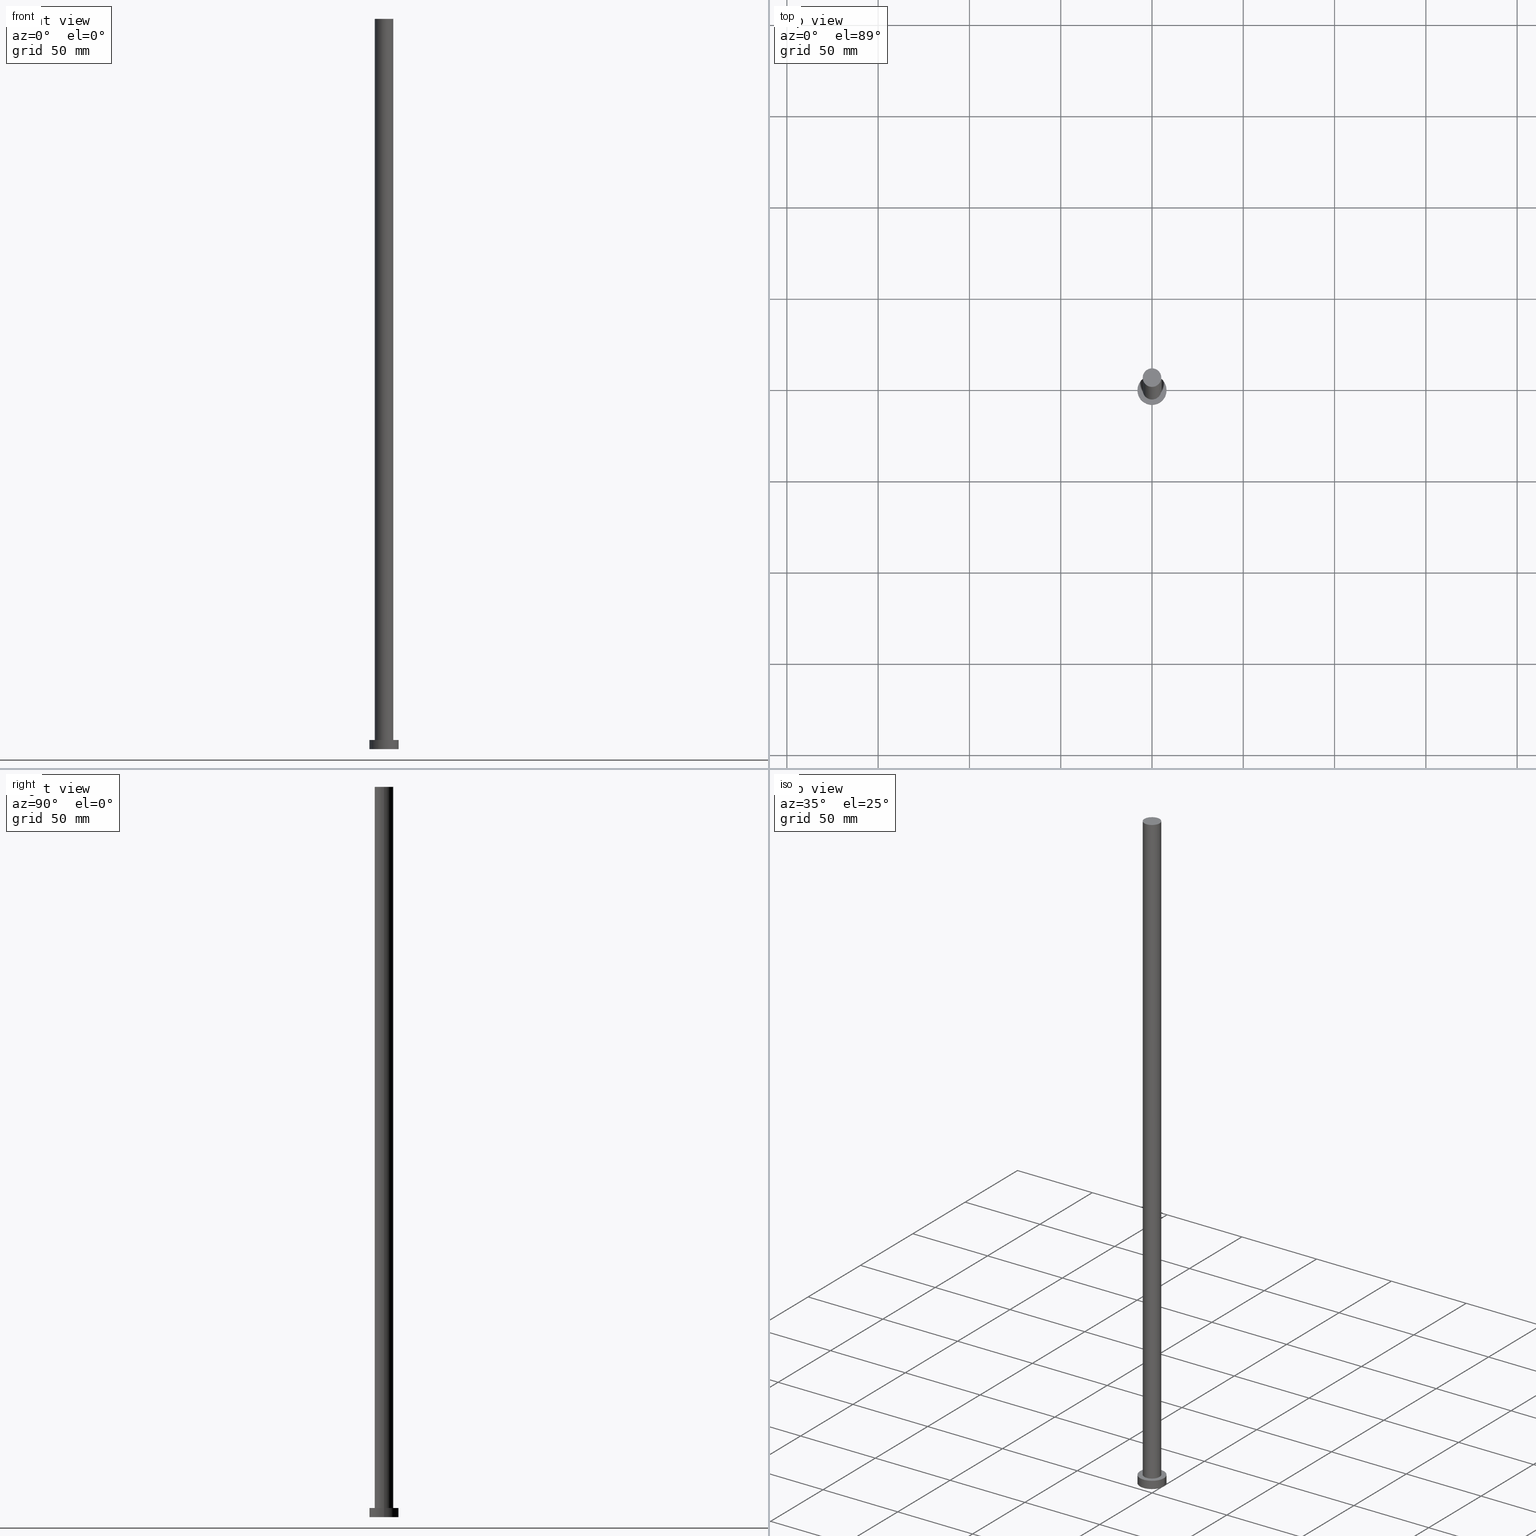
[diagram: canonical four-view strip — front | top / right | iso, engineering-drawing reading convention]
A machine part, canonical four-view strip (front | top / right | iso — engineering-drawing reading convention). The complete STEP part file that produces these views, byte-faithful:
ISO-10303-21;
HEADER;
FILE_DESCRIPTION (( 'STEP AP203' ),
    '1' );
FILE_NAME ('1d76.STEP',
    '2023-02-13T11:13:22',
    ( '' ),
    ( '' ),
    'SwSTEP 2.0',
    'SolidWorks 2019',
    '' );
FILE_SCHEMA (( 'CONFIG_CONTROL_DESIGN' ));
ENDSEC;

DATA;
#1 = FACE_OUTER_BOUND ( 'NONE', #31, .T. ) ;
#2 = MANIFOLD_SOLID_BREP ( 'P�idat vysunut�m3', #82 ) ;
#3 = DIRECTION ( 'NONE',  ( 0.000000000000000000, 0.000000000000000000, 1.000000000000000000 ) ) ;
#4 = UNCERTAINTY_MEASURE_WITH_UNIT (LENGTH_MEASURE( 1.000000000000000082E-05 ), #123, 'distance_accuracy_value', 'NONE');
#5 = EDGE_CURVE ( 'NONE', #151, #147, #227, .T. ) ;
#6 = VECTOR ( 'NONE', #42, 1000.000000000000000 ) ;
#7 = SECURITY_CLASSIFICATION_LEVEL ( 'unclassified' ) ;
#8 = CARTESIAN_POINT ( 'NONE',  ( 5.100000000000001421, 6.245698675651501825E-16, 400.0000000000000000 ) ) ;
#9 = AXIS2_PLACEMENT_3D ( 'NONE', #78, #187, #152 ) ;
#10 = VECTOR ( 'NONE', #232, 1000.000000000000000 ) ;
#11 = ORIENTED_EDGE ( 'NONE', *, *, #186, .F. ) ;
#12 = DIRECTION ( 'NONE',  ( 1.000000000000000000, 0.000000000000000000, 0.000000000000000000 ) ) ;
#13 = APPROVAL_DATE_TIME ( #125, #240 ) ;
#14 = VERTEX_POINT ( 'NONE', #239 ) ;
#15 = APPLICATION_CONTEXT ( 'configuration controlled 3d designs of mechanical parts and assemblies' ) ;
#16 = PERSON_AND_ORGANIZATION_ROLE ( 'classification_officer' ) ;
#17 = EDGE_LOOP ( 'NONE', ( #204, #181 ) ) ;
#18 = LINE ( 'NONE', #53, #52 ) ;
#19 = ADVANCED_FACE ( 'NONE', ( #189 ), #101, .T. ) ;
#20 = PERSON_AND_ORGANIZATION ( #231, #198 ) ;
#21 = DIRECTION ( 'NONE',  ( 1.000000000000000000, 0.000000000000000000, 0.000000000000000000 ) ) ;
#22 = DIRECTION ( 'NONE',  ( 1.000000000000000000, 0.000000000000000000, 0.000000000000000000 ) ) ;
#23 = ORIENTED_EDGE ( 'NONE', *, *, #186, .T. ) ;
#24 = DIRECTION ( 'NONE',  ( -1.000000000000000000, 0.000000000000000000, 0.000000000000000000 ) ) ;
#25 = CC_DESIGN_PERSON_AND_ORGANIZATION_ASSIGNMENT ( #180, #88, ( #166 ) ) ;
#26 = CARTESIAN_POINT ( 'NONE',  ( 0.000000000000000000, 0.000000000000000000, 0.000000000000000000 ) ) ;
#27 = ADVANCED_FACE ( 'NONE', ( #1 ), #96, .T. ) ;
#28 = SECURITY_CLASSIFICATION ( '', '', #7 ) ;
#29 = EDGE_CURVE ( 'NONE', #56, #168, #153, .T. ) ;
#30 = DIRECTION ( 'NONE',  ( -0.000000000000000000, -0.000000000000000000, -1.000000000000000000 ) ) ;
#31 = EDGE_LOOP ( 'NONE', ( #72, #244, #49, #11 ) ) ;
#32 = ORIENTED_EDGE ( 'NONE', *, *, #246, .F. ) ;
#33 = EDGE_CURVE ( 'NONE', #184, #168, #143, .T. ) ;
#34 = EDGE_CURVE ( 'NONE', #147, #97, #18, .T. ) ;
#35 = CARTESIAN_POINT ( 'NONE',  ( -8.000000000000000000, 0.000000000000000000, 5.000000000000000000 ) ) ;
#36 = ORIENTED_EDGE ( 'NONE', *, *, #33, .T. ) ;
#37 = CC_DESIGN_PERSON_AND_ORGANIZATION_ASSIGNMENT ( #194, #16, ( #28 ) ) ;
#38 = FACE_BOUND ( 'NONE', #90, .T. ) ;
#39 = CALENDAR_DATE ( 2023, 13, 2 ) ;
#40 = AXIS2_PLACEMENT_3D ( 'NONE', #137, #230, #145 ) ;
#41 = ORIENTED_EDGE ( 'NONE', *, *, #195, .T. ) ;
#42 = DIRECTION ( 'NONE',  ( -0.000000000000000000, -0.000000000000000000, -1.000000000000000000 ) ) ;
#43 = ORIENTED_EDGE ( 'NONE', *, *, #81, .F. ) ;
#44 = CIRCLE ( 'NONE', #174, 8.000000000000000000 ) ;
#45 = CARTESIAN_POINT ( 'NONE',  ( 0.000000000000000000, 0.000000000000000000, 0.000000000000000000 ) ) ;
#46 = CARTESIAN_POINT ( 'NONE',  ( -8.000000000000000000, 0.000000000000000000, 0.000000000000000000 ) ) ;
#47 = DIRECTION ( 'NONE',  ( 1.000000000000000000, 0.000000000000000000, -0.000000000000000000 ) ) ;
#48 = ORIENTED_EDGE ( 'NONE', *, *, #29, .T. ) ;
#49 = ORIENTED_EDGE ( 'NONE', *, *, #250, .T. ) ;
#50 = DATE_AND_TIME ( #100, #150 ) ;
#51 = DIRECTION ( 'NONE',  ( 1.000000000000000000, 0.000000000000000000, 0.000000000000000000 ) ) ;
#52 = VECTOR ( 'NONE', #93, 1000.000000000000000 ) ;
#53 = CARTESIAN_POINT ( 'NONE',  ( 5.100000000000001421, 6.245698675651501825E-16, 400.0000000000000000 ) ) ;
#54 = APPROVAL_STATUS ( 'not_yet_approved' ) ;
#55 = COORDINATED_UNIVERSAL_TIME_OFFSET ( 1, 0, .AHEAD. ) ;
#56 = VERTEX_POINT ( 'NONE', #209 ) ;
#57 = ADVANCED_FACE ( 'NONE', ( #38, #254 ), #156, .T. ) ;
#58 = DIRECTION ( 'NONE',  ( 0.000000000000000000, 0.000000000000000000, 1.000000000000000000 ) ) ;
#59 = APPROVAL_PERSON_ORGANIZATION ( #98, #160, #76 ) ;
#60 = FACE_OUTER_BOUND ( 'NONE', #255, .T. ) ;
#61 = PERSON_AND_ORGANIZATION ( #231, #198 ) ;
#62 = PLANE ( 'NONE',  #148 ) ;
#63 = CIRCLE ( 'NONE', #213, 8.000000000000000000 ) ;
#64 = CIRCLE ( 'NONE', #120, 5.100000000000001421 ) ;
#65 = APPLICATION_PROTOCOL_DEFINITION ( 'international standard', 'config_control_design', 1994, #162 ) ;
#66 = EDGE_CURVE ( 'NONE', #56, #14, #63, .T. ) ;
#67 = DATE_AND_TIME ( #229, #154 ) ;
#68 = DIRECTION ( 'NONE',  ( 0.000000000000000000, 0.000000000000000000, 1.000000000000000000 ) ) ;
#69 = AXIS2_PLACEMENT_3D ( 'NONE', #220, #108, #47 ) ;
#70 = MECHANICAL_CONTEXT ( 'NONE', #162, 'mechanical' ) ;
#71 = CARTESIAN_POINT ( 'NONE',  ( 0.000000000000000000, 0.000000000000000000, 5.000000000000000000 ) ) ;
#72 = ORIENTED_EDGE ( 'NONE', *, *, #115, .F. ) ;
#73 = DATE_AND_TIME ( #131, #118 ) ;
#74 = DIRECTION ( 'NONE',  ( 0.000000000000000000, 0.000000000000000000, 1.000000000000000000 ) ) ;
#75 = COORDINATED_UNIVERSAL_TIME_OFFSET ( 1, 0, .AHEAD. ) ;
#76 = APPROVAL_ROLE ( '' ) ;
#77 = CARTESIAN_POINT ( 'NONE',  ( 0.000000000000000000, 0.000000000000000000, 400.0000000000000000 ) ) ;
#78 = CARTESIAN_POINT ( 'NONE',  ( 0.000000000000000000, 0.000000000000000000, 400.0000000000000000 ) ) ;
#79 = CIRCLE ( 'NONE', #222, 5.100000000000001421 ) ;
#80 = ADVANCED_FACE ( 'NONE', ( #60 ), #62, .F. ) ;
#81 = EDGE_CURVE ( 'NONE', #133, #97, #79, .T. ) ;
#82 = CLOSED_SHELL ( 'NONE', ( #27, #214, #124, #57, #80, #192, #19 ) ) ;
#83 = CARTESIAN_POINT ( 'NONE',  ( 0.000000000000000000, 0.000000000000000000, 5.000000000000000000 ) ) ;
#84 = AXIS2_PLACEMENT_3D ( 'NONE', #83, #218, #24 ) ;
#85 = AXIS2_PLACEMENT_3D ( 'NONE', #126, #178, #226 ) ;
#86 = ORIENTED_EDGE ( 'NONE', *, *, #237, .F. ) ;
#87 = CC_DESIGN_PERSON_AND_ORGANIZATION_ASSIGNMENT ( #216, #132, ( #253 ) ) ;
#88 = PERSON_AND_ORGANIZATION_ROLE ( 'design_owner' ) ;
#89 =( GEOMETRIC_REPRESENTATION_CONTEXT ( 3 ) GLOBAL_UNCERTAINTY_ASSIGNED_CONTEXT ( ( #4 ) ) GLOBAL_UNIT_ASSIGNED_CONTEXT ( ( #123, #144, #243 ) ) REPRESENTATION_CONTEXT ( 'NONE', 'WORKASPACE' ) );
#90 = EDGE_LOOP ( 'NONE', ( #43, #146 ) ) ;
#91 = CC_DESIGN_DATE_AND_TIME_ASSIGNMENT ( #164, #251, ( #175 ) ) ;
#92 = APPROVAL_DATE_TIME ( #50, #106 ) ;
#93 = DIRECTION ( 'NONE',  ( -0.000000000000000000, -0.000000000000000000, -1.000000000000000000 ) ) ;
#94 = ADVANCED_BREP_SHAPE_REPRESENTATION ( '1d76', ( #2, #85 ), #89 ) ;
#95 = APPLICATION_PROTOCOL_DEFINITION ( 'international standard', 'config_control_design', 1994, #15 ) ;
#96 = CYLINDRICAL_SURFACE ( 'NONE', #9, 5.100000000000001421 ) ;
#97 = VERTEX_POINT ( 'NONE', #221 ) ;
#98 = PERSON_AND_ORGANIZATION ( #231, #198 ) ;
#99 = PRODUCT_DEFINITION_SHAPE ( 'NONE', 'NONE',  #175 ) ;
#100 = CALENDAR_DATE ( 2023, 13, 2 ) ;
#101 = PLANE ( 'NONE',  #117 ) ;
#102 = CARTESIAN_POINT ( 'NONE',  ( 0.000000000000000000, 0.000000000000000000, 400.0000000000000000 ) ) ;
#103 = ORIENTED_EDGE ( 'NONE', *, *, #66, .F. ) ;
#104 = APPROVAL_PERSON_ORGANIZATION ( #149, #106, #236 ) ;
#105 = DIRECTION ( 'NONE',  ( 0.000000000000000000, 0.000000000000000000, 1.000000000000000000 ) ) ;
#106 = APPROVAL ( #116, 'NEUR�EN�' ) ;
#107 = CARTESIAN_POINT ( 'NONE',  ( 8.000000000000000000, 9.797174393178825657E-16, 0.000000000000000000 ) ) ;
#108 = DIRECTION ( 'NONE',  ( 0.000000000000000000, 0.000000000000000000, 1.000000000000000000 ) ) ;
#109 = CARTESIAN_POINT ( 'NONE',  ( 0.000000000000000000, 0.000000000000000000, 5.000000000000000000 ) ) ;
#110 = DIRECTION ( 'NONE',  ( 1.000000000000000000, 0.000000000000000000, 0.000000000000000000 ) ) ;
#111 = LOCAL_TIME ( 12, 13, 22.00000000000000000, #75 ) ;
#112 = COORDINATED_UNIVERSAL_TIME_OFFSET ( 1, 0, .AHEAD. ) ;
#113 = CIRCLE ( 'NONE', #205, 5.100000000000001421 ) ;
#114 = ORIENTED_EDGE ( 'NONE', *, *, #5, .F. ) ;
#115 = EDGE_CURVE ( 'NONE', #147, #151, #113, .T. ) ;
#116 = APPROVAL_STATUS ( 'not_yet_approved' ) ;
#117 = AXIS2_PLACEMENT_3D ( 'NONE', #77, #185, #234 ) ;
#118 = LOCAL_TIME ( 12, 13, 22.00000000000000000, #55 ) ;
#119 = DIRECTION ( 'NONE',  ( 1.000000000000000000, 0.000000000000000000, 0.000000000000000000 ) ) ;
#120 = AXIS2_PLACEMENT_3D ( 'NONE', #71, #161, #110 ) ;
#121 = DIRECTION ( 'NONE',  ( -0.000000000000000000, -0.000000000000000000, -1.000000000000000000 ) ) ;
#122 = SHAPE_DEFINITION_REPRESENTATION ( #99, #94 ) ;
#123 =( LENGTH_UNIT ( ) NAMED_UNIT ( * ) SI_UNIT ( .MILLI., .METRE. ) );
#124 = ADVANCED_FACE ( 'NONE', ( #155 ), #134, .T. ) ;
#125 = DATE_AND_TIME ( #179, #130 ) ;
#126 = CARTESIAN_POINT ( 'NONE',  ( 0.000000000000000000, 0.000000000000000000, 0.000000000000000000 ) ) ;
#127 = DATE_TIME_ROLE ( 'classification_date' ) ;
#128 = CARTESIAN_POINT ( 'NONE',  ( 0.000000000000000000, 0.000000000000000000, 5.000000000000000000 ) ) ;
#129 = ORIENTED_EDGE ( 'NONE', *, *, #66, .T. ) ;
#130 = LOCAL_TIME ( 12, 13, 22.00000000000000000, #112 ) ;
#131 = CALENDAR_DATE ( 2023, 13, 2 ) ;
#132 = PERSON_AND_ORGANIZATION_ROLE ( 'design_supplier' ) ;
#133 = VERTEX_POINT ( 'NONE', #193 ) ;
#134 = CYLINDRICAL_SURFACE ( 'NONE', #84, 8.000000000000000000 ) ;
#135 = APPROVAL_PERSON_ORGANIZATION ( #61, #240, #158 ) ;
#136 = DIRECTION ( 'NONE',  ( 1.000000000000000000, 0.000000000000000000, -0.000000000000000000 ) ) ;
#137 = CARTESIAN_POINT ( 'NONE',  ( 0.000000000000000000, 0.000000000000000000, 400.0000000000000000 ) ) ;
#138 = COORDINATED_UNIVERSAL_TIME_OFFSET ( 1, 0, .AHEAD. ) ;
#139 = CARTESIAN_POINT ( 'NONE',  ( 0.000000000000000000, 0.000000000000000000, 5.000000000000000000 ) ) ;
#140 = PRODUCT_RELATED_PRODUCT_CATEGORY ( 'detail', '', ( #166 ) ) ;
#141 = CARTESIAN_POINT ( 'NONE',  ( 0.000000000000000000, 0.000000000000000000, 400.0000000000000000 ) ) ;
#142 = ORIENTED_EDGE ( 'NONE', *, *, #34, .F. ) ;
#143 = CIRCLE ( 'NONE', #173, 8.000000000000000000 ) ;
#144 =( NAMED_UNIT ( * ) PLANE_ANGLE_UNIT ( ) SI_UNIT ( $, .RADIAN. ) );
#145 = DIRECTION ( 'NONE',  ( -1.000000000000000000, 0.000000000000000000, 0.000000000000000000 ) ) ;
#146 = ORIENTED_EDGE ( 'NONE', *, *, #250, .F. ) ;
#147 = VERTEX_POINT ( 'NONE', #8 ) ;
#148 = AXIS2_PLACEMENT_3D ( 'NONE', #45, #171, #136 ) ;
#149 = PERSON_AND_ORGANIZATION ( #231, #198 ) ;
#150 = LOCAL_TIME ( 12, 13, 22.00000000000000000, #208 ) ;
#151 = VERTEX_POINT ( 'NONE', #159 ) ;
#152 = DIRECTION ( 'NONE',  ( -1.000000000000000000, 0.000000000000000000, 0.000000000000000000 ) ) ;
#153 = LINE ( 'NONE', #35, #6 ) ;
#154 = LOCAL_TIME ( 12, 13, 22.00000000000000000, #138 ) ;
#155 = FACE_OUTER_BOUND ( 'NONE', #248, .T. ) ;
#156 = PLANE ( 'NONE',  #69 ) ;
#157 = CYLINDRICAL_SURFACE ( 'NONE', #40, 5.100000000000001421 ) ;
#158 = APPROVAL_ROLE ( '' ) ;
#159 = CARTESIAN_POINT ( 'NONE',  ( -5.100000000000001421, 0.000000000000000000, 400.0000000000000000 ) ) ;
#160 = APPROVAL ( #54, 'NEUR�EN�' ) ;
#161 = DIRECTION ( 'NONE',  ( 0.000000000000000000, 0.000000000000000000, 1.000000000000000000 ) ) ;
#162 = APPLICATION_CONTEXT ( 'configuration controlled 3d designs of mechanical parts and assemblies' ) ;
#163 = ORIENTED_EDGE ( 'NONE', *, *, #237, .T. ) ;
#164 = DATE_AND_TIME ( #39, #111 ) ;
#165 = CC_DESIGN_APPROVAL ( #240, ( #28 ) ) ;
#166 = PRODUCT ( '1d76', '1d76', '', ( #70 ) ) ;
#167 = PERSON_AND_ORGANIZATION_ROLE ( 'creator' ) ;
#168 = VERTEX_POINT ( 'NONE', #46 ) ;
#169 = PERSON_AND_ORGANIZATION_ROLE ( 'creator' ) ;
#170 = CARTESIAN_POINT ( 'NONE',  ( -5.100000000000001421, 0.000000000000000000, 400.0000000000000000 ) ) ;
#171 = DIRECTION ( 'NONE',  ( 0.000000000000000000, 0.000000000000000000, 1.000000000000000000 ) ) ;
#172 = FACE_OUTER_BOUND ( 'NONE', #249, .T. ) ;
#173 = AXIS2_PLACEMENT_3D ( 'NONE', #252, #74, #21 ) ;
#174 = AXIS2_PLACEMENT_3D ( 'NONE', #26, #68, #202 ) ;
#175 = PRODUCT_DEFINITION ( 'NEZN�M�', '', #253, #199 ) ;
#176 = DIRECTION ( 'NONE',  ( -1.000000000000000000, 0.000000000000000000, 0.000000000000000000 ) ) ;
#177 = CC_DESIGN_PERSON_AND_ORGANIZATION_ASSIGNMENT ( #20, #167, ( #175 ) ) ;
#178 = DIRECTION ( 'NONE',  ( 0.000000000000000000, 0.000000000000000000, 1.000000000000000000 ) ) ;
#179 = CALENDAR_DATE ( 2023, 13, 2 ) ;
#180 = PERSON_AND_ORGANIZATION ( #231, #198 ) ;
#181 = ORIENTED_EDGE ( 'NONE', *, *, #115, .T. ) ;
#182 = ORIENTED_EDGE ( 'NONE', *, *, #33, .F. ) ;
#183 = AXIS2_PLACEMENT_3D ( 'NONE', #141, #217, #51 ) ;
#184 = VERTEX_POINT ( 'NONE', #107 ) ;
#185 = DIRECTION ( 'NONE',  ( 0.000000000000000000, 0.000000000000000000, 1.000000000000000000 ) ) ;
#186 = EDGE_CURVE ( 'NONE', #151, #133, #191, .T. ) ;
#187 = DIRECTION ( 'NONE',  ( -0.000000000000000000, -0.000000000000000000, -1.000000000000000000 ) ) ;
#188 = ORIENTED_EDGE ( 'NONE', *, *, #195, .F. ) ;
#189 = FACE_OUTER_BOUND ( 'NONE', #17, .T. ) ;
#190 = VECTOR ( 'NONE', #121, 1000.000000000000000 ) ;
#191 = LINE ( 'NONE', #170, #190 ) ;
#192 = ADVANCED_FACE ( 'NONE', ( #172 ), #157, .T. ) ;
#193 = CARTESIAN_POINT ( 'NONE',  ( -5.100000000000001421, 0.000000000000000000, 5.000000000000000000 ) ) ;
#194 = PERSON_AND_ORGANIZATION ( #231, #198 ) ;
#195 = EDGE_CURVE ( 'NONE', #14, #56, #223, .T. ) ;
#196 = CYLINDRICAL_SURFACE ( 'NONE', #219, 8.000000000000000000 ) ;
#197 = CC_DESIGN_SECURITY_CLASSIFICATION ( #28, ( #253 ) ) ;
#198 = ORGANIZATION ( 'NEUR�EN�', 'NEUR�EN�', '' ) ;
#199 = DESIGN_CONTEXT ( 'detailed design', #15, 'design' ) ;
#200 = APPROVAL_STATUS ( 'not_yet_approved' ) ;
#201 = DIRECTION ( 'NONE',  ( 0.000000000000000000, 0.000000000000000000, 1.000000000000000000 ) ) ;
#202 = DIRECTION ( 'NONE',  ( 1.000000000000000000, 0.000000000000000000, 0.000000000000000000 ) ) ;
#203 = ORIENTED_EDGE ( 'NONE', *, *, #246, .T. ) ;
#204 = ORIENTED_EDGE ( 'NONE', *, *, #5, .T. ) ;
#205 = AXIS2_PLACEMENT_3D ( 'NONE', #102, #58, #242 ) ;
#206 = CC_DESIGN_APPROVAL ( #106, ( #175 ) ) ;
#207 = PERSON_AND_ORGANIZATION ( #231, #198 ) ;
#208 = COORDINATED_UNIVERSAL_TIME_OFFSET ( 1, 0, .AHEAD. ) ;
#209 = CARTESIAN_POINT ( 'NONE',  ( -8.000000000000000000, 0.000000000000000000, 5.000000000000000000 ) ) ;
#210 = CC_DESIGN_PERSON_AND_ORGANIZATION_ASSIGNMENT ( #207, #169, ( #253 ) ) ;
#211 = APPROVAL_DATE_TIME ( #73, #160 ) ;
#212 = EDGE_LOOP ( 'NONE', ( #129, #41 ) ) ;
#213 = AXIS2_PLACEMENT_3D ( 'NONE', #241, #105, #22 ) ;
#214 = ADVANCED_FACE ( 'NONE', ( #245 ), #196, .T. ) ;
#215 = AXIS2_PLACEMENT_3D ( 'NONE', #128, #201, #12 ) ;
#216 = PERSON_AND_ORGANIZATION ( #231, #198 ) ;
#217 = DIRECTION ( 'NONE',  ( 0.000000000000000000, 0.000000000000000000, 1.000000000000000000 ) ) ;
#218 = DIRECTION ( 'NONE',  ( -0.000000000000000000, -0.000000000000000000, -1.000000000000000000 ) ) ;
#219 = AXIS2_PLACEMENT_3D ( 'NONE', #109, #30, #176 ) ;
#220 = CARTESIAN_POINT ( 'NONE',  ( 0.000000000000000000, 0.000000000000000000, 5.000000000000000000 ) ) ;
#221 = CARTESIAN_POINT ( 'NONE',  ( 5.100000000000001421, 6.245698675651501825E-16, 5.000000000000000000 ) ) ;
#222 = AXIS2_PLACEMENT_3D ( 'NONE', #139, #3, #119 ) ;
#223 = CIRCLE ( 'NONE', #215, 8.000000000000000000 ) ;
#224 = LINE ( 'NONE', #247, #10 ) ;
#225 = CC_DESIGN_DATE_AND_TIME_ASSIGNMENT ( #67, #127, ( #28 ) ) ;
#226 = DIRECTION ( 'NONE',  ( 1.000000000000000000, 0.000000000000000000, 0.000000000000000000 ) ) ;
#227 = CIRCLE ( 'NONE', #183, 5.100000000000001421 ) ;
#228 = EDGE_LOOP ( 'NONE', ( #188, #163, #36, #238 ) ) ;
#229 = CALENDAR_DATE ( 2023, 13, 2 ) ;
#230 = DIRECTION ( 'NONE',  ( -0.000000000000000000, -0.000000000000000000, -1.000000000000000000 ) ) ;
#231 = PERSON ( 'NEUR�EN�', 'NEUR�EN�', 'NEUR�EN�', ('NEUR�EN�'), ('NEUR�EN�'), ('NEUR�EN�') ) ;
#232 = DIRECTION ( 'NONE',  ( -0.000000000000000000, -0.000000000000000000, -1.000000000000000000 ) ) ;
#233 = ORIENTED_EDGE ( 'NONE', *, *, #81, .T. ) ;
#234 = DIRECTION ( 'NONE',  ( 1.000000000000000000, 0.000000000000000000, -0.000000000000000000 ) ) ;
#235 = CC_DESIGN_APPROVAL ( #160, ( #253 ) ) ;
#236 = APPROVAL_ROLE ( '' ) ;
#237 = EDGE_CURVE ( 'NONE', #14, #184, #224, .T. ) ;
#238 = ORIENTED_EDGE ( 'NONE', *, *, #29, .F. ) ;
#239 = CARTESIAN_POINT ( 'NONE',  ( 8.000000000000000000, 9.797174393178825657E-16, 5.000000000000000000 ) ) ;
#240 = APPROVAL ( #200, 'NEUR�EN�' ) ;
#241 = CARTESIAN_POINT ( 'NONE',  ( 0.000000000000000000, 0.000000000000000000, 5.000000000000000000 ) ) ;
#242 = DIRECTION ( 'NONE',  ( 1.000000000000000000, 0.000000000000000000, 0.000000000000000000 ) ) ;
#243 =( NAMED_UNIT ( * ) SI_UNIT ( $, .STERADIAN. ) SOLID_ANGLE_UNIT ( ) );
#244 = ORIENTED_EDGE ( 'NONE', *, *, #34, .T. ) ;
#245 = FACE_OUTER_BOUND ( 'NONE', #228, .T. ) ;
#246 = EDGE_CURVE ( 'NONE', #168, #184, #44, .T. ) ;
#247 = CARTESIAN_POINT ( 'NONE',  ( 8.000000000000000000, 9.797174393178825657E-16, 5.000000000000000000 ) ) ;
#248 = EDGE_LOOP ( 'NONE', ( #86, #103, #48, #203 ) ) ;
#249 = EDGE_LOOP ( 'NONE', ( #142, #114, #23, #233 ) ) ;
#250 = EDGE_CURVE ( 'NONE', #97, #133, #64, .T. ) ;
#251 = DATE_TIME_ROLE ( 'creation_date' ) ;
#252 = CARTESIAN_POINT ( 'NONE',  ( 0.000000000000000000, 0.000000000000000000, 0.000000000000000000 ) ) ;
#253 = PRODUCT_DEFINITION_FORMATION_WITH_SPECIFIED_SOURCE ( 'LIBOVOLN�', '', #166, .NOT_KNOWN. ) ;
#254 = FACE_OUTER_BOUND ( 'NONE', #212, .T. ) ;
#255 = EDGE_LOOP ( 'NONE', ( #32, #182 ) ) ;
ENDSEC;
END-ISO-10303-21;
